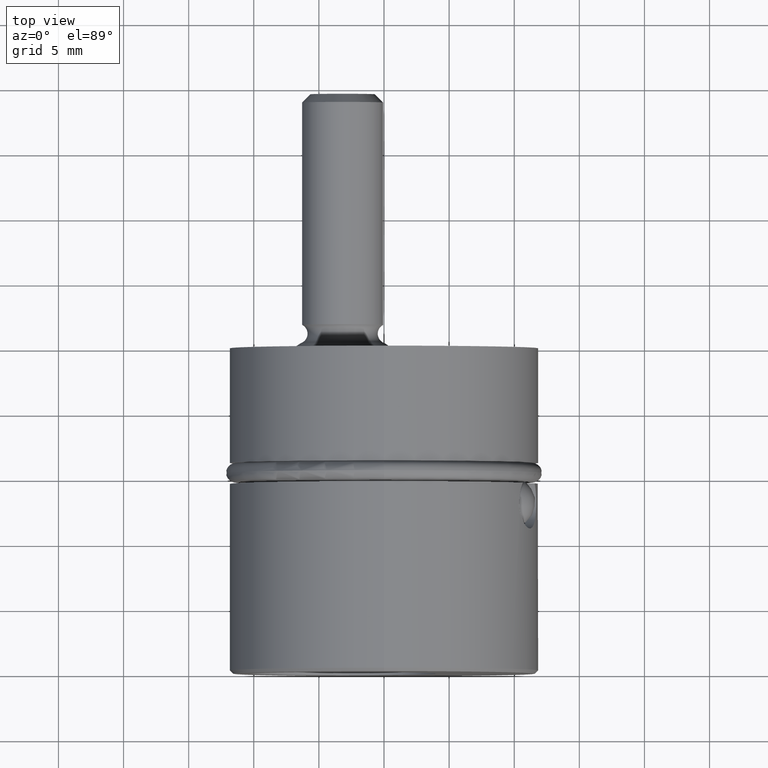
[diagram: clean part render]
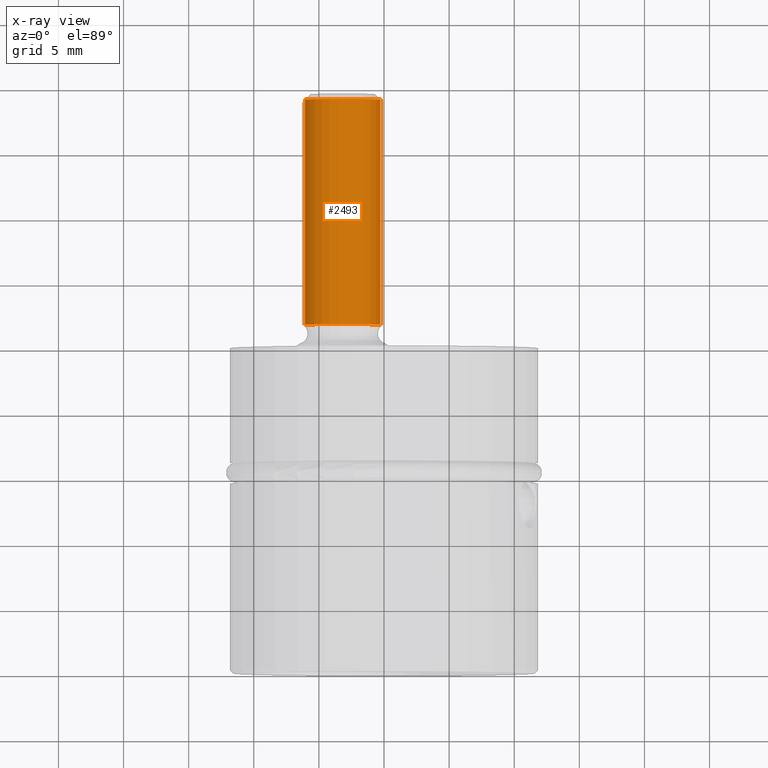
[diagram: x-ray — body ghosted, one internal face saturated and labeled with its STEP entity id]
A machine part, top view, then the same camera in x-ray: the body is ghosted and one INTERNAL B-rep face — a face not visible from any outside direction — is saturated and labeled: STEP entity #2493.
In plain terms, the highlighted cylindrical surface (partial cylindrical patch) has radius 2.8829 mm, axis along (0, -1, 0).
Its self-contained STEP definition (entity closure, byte-faithful):
#2411=CARTESIAN_POINT('',(0.E0,3.027908566492E-1,0.E0));
#2412=DIRECTION('',(0.E0,-1.E0,0.E0));
#2413=DIRECTION('',(1.E0,0.E0,0.E0));
#2414=AXIS2_PLACEMENT_3D('',#2411,#2412,#2413);
#2431=CARTESIAN_POINT('',(0.E0,9.84E-1,0.E0));
#2432=DIRECTION('',(0.E0,1.E0,0.E0));
#2433=DIRECTION('',(-1.E0,0.E0,0.E0));
#2434=AXIS2_PLACEMENT_3D('',#2431,#2432,#2433);
#2436=DIRECTION('',(0.E0,-1.E0,0.E0));
#2437=VECTOR('',#2436,6.812091433508E-1);
#2438=CARTESIAN_POINT('',(1.135E-1,9.84E-1,0.E0));
#2439=LINE('',#2438,#2437);
#2445=DIRECTION('',(0.E0,-1.E0,0.E0));
#2446=VECTOR('',#2445,6.812091433508E-1);
#2447=CARTESIAN_POINT('',(-1.135E-1,9.84E-1,0.E0));
#2448=LINE('',#2447,#2446);
#2449=CARTESIAN_POINT('',(1.135E-1,3.027908566492E-1,0.E0));
#2450=CARTESIAN_POINT('',(-1.135E-1,3.027908566492E-1,0.E0));
#2451=VERTEX_POINT('',#2449);
#2452=VERTEX_POINT('',#2450);
#2453=CARTESIAN_POINT('',(1.135E-1,9.84E-1,0.E0));
#2454=CARTESIAN_POINT('',(-1.135E-1,9.84E-1,0.E0));
#2455=VERTEX_POINT('',#2453);
#2456=VERTEX_POINT('',#2454);
#2479=CARTESIAN_POINT('',(0.E0,1.100000000118E0,0.E0));
#2480=DIRECTION('',(0.E0,-1.E0,0.E0));
#2481=DIRECTION('',(1.E0,0.E0,0.E0));
#2482=AXIS2_PLACEMENT_3D('',#2479,#2480,#2481);
#2483=CYLINDRICAL_SURFACE('',#2482,1.135E-1);
#2485=ORIENTED_EDGE('',*,*,#2484,.T.);
#2487=ORIENTED_EDGE('',*,*,#2486,.T.);
#2488=ORIENTED_EDGE('',*,*,#2472,.T.);
#2490=ORIENTED_EDGE('',*,*,#2489,.F.);
#2491=EDGE_LOOP('',(#2485,#2487,#2488,#2490));
#2492=FACE_OUTER_BOUND('',#2491,.F.);
#2415=CIRCLE('',#2414,1.135E-1);
#2435=CIRCLE('',#2434,1.135E-1);
#2472=EDGE_CURVE('',#2451,#2452,#2415,.T.);
#2484=EDGE_CURVE('',#2456,#2455,#2435,.T.);
#2486=EDGE_CURVE('',#2455,#2451,#2439,.T.);
#2489=EDGE_CURVE('',#2456,#2452,#2448,.T.);
#2493=ADVANCED_FACE('',(#2492),#2483,.T.);